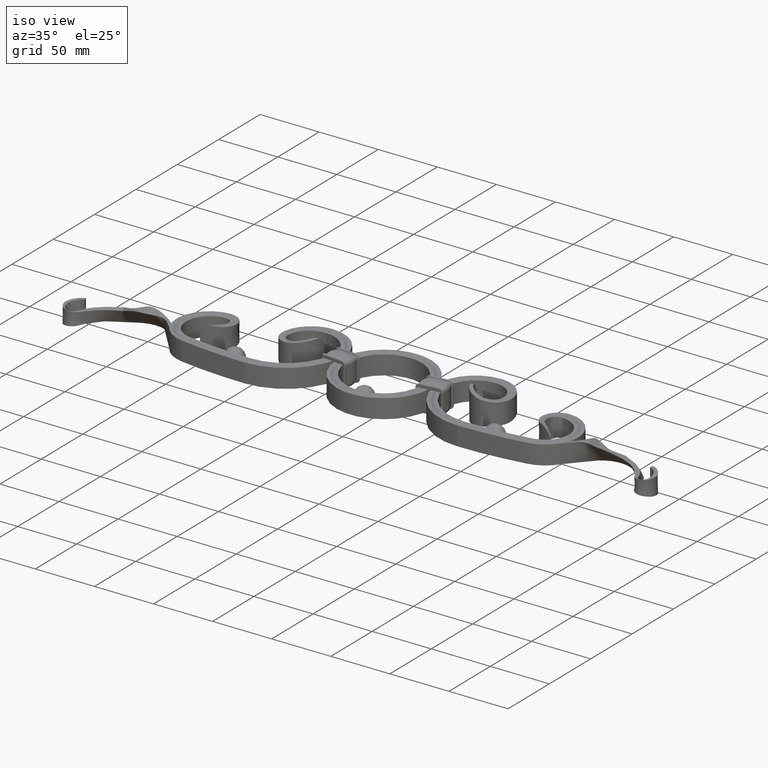
[diagram: clean part render]
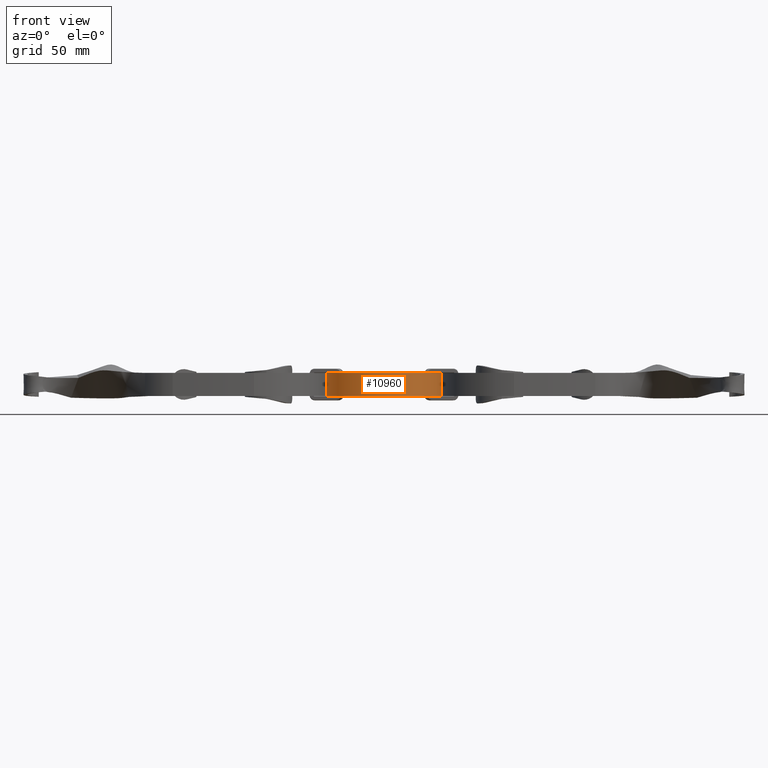
[diagram: tour spotlight — one face highlighted and labeled with its STEP entity id]
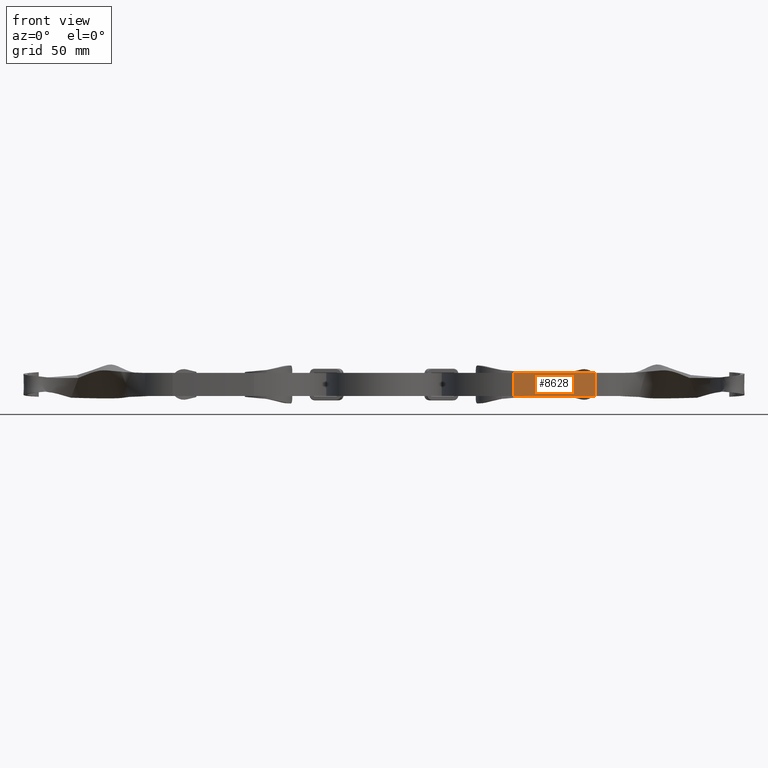
[diagram: tour spotlight — one face highlighted and labeled with its STEP entity id]
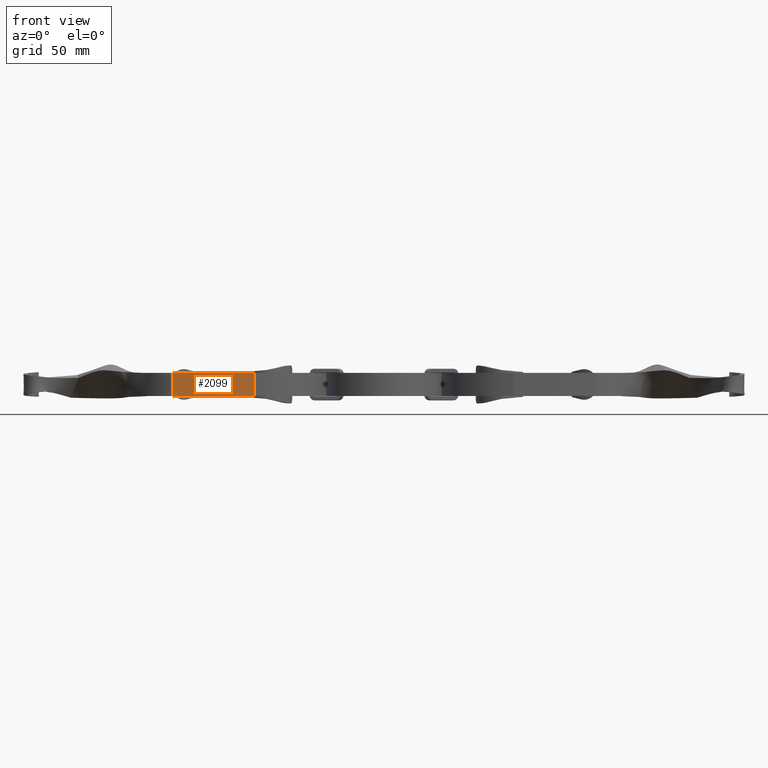
[diagram: tour spotlight — one face highlighted and labeled with its STEP entity id]
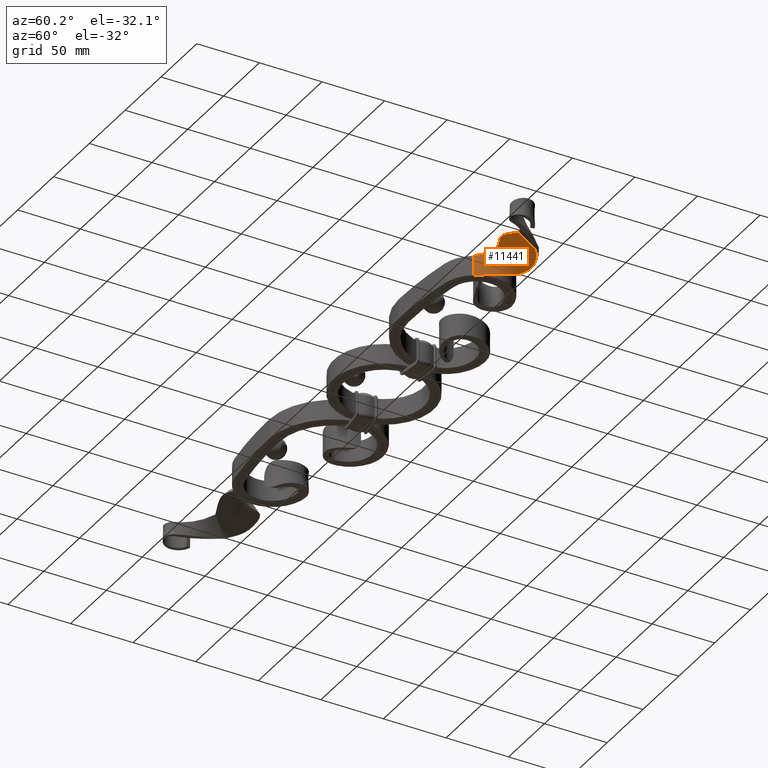
[diagram: tour spotlight — one face highlighted and labeled with its STEP entity id]
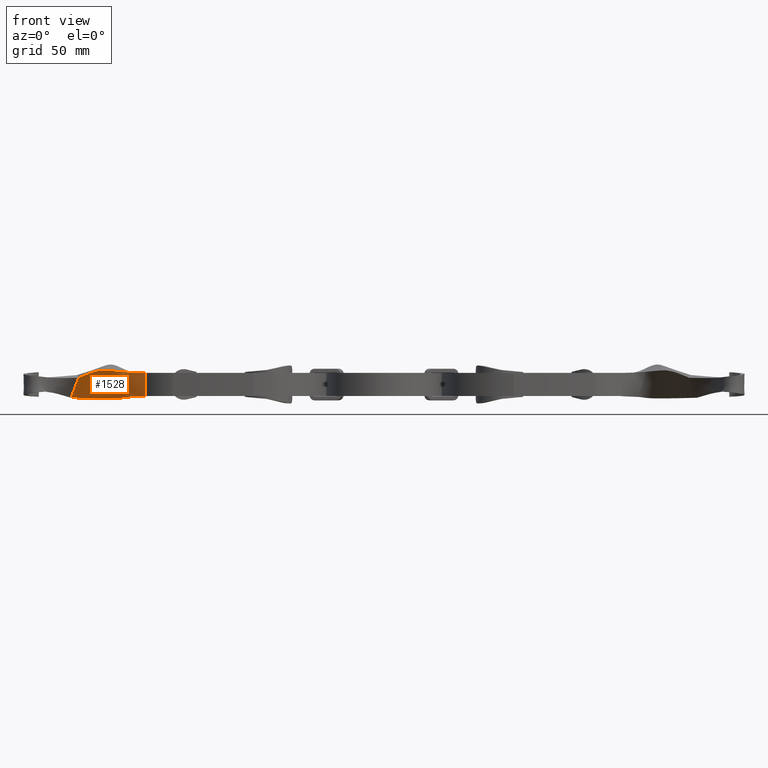
[diagram: tour spotlight — one face highlighted and labeled with its STEP entity id]
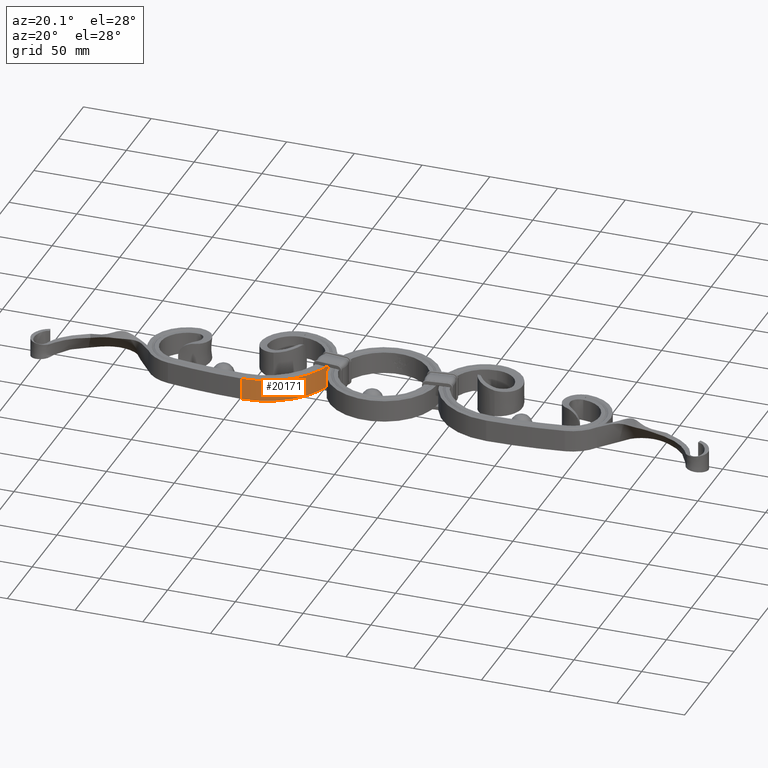
[diagram: tour spotlight — one face highlighted and labeled with its STEP entity id]
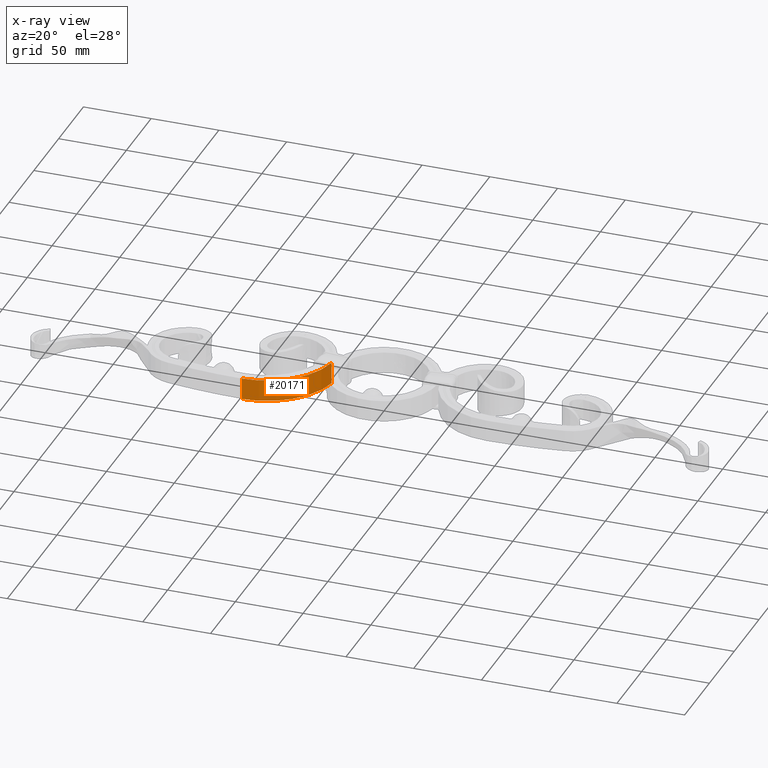
[diagram: x-ray of the same camera — body ghosted, this tour face saturated]
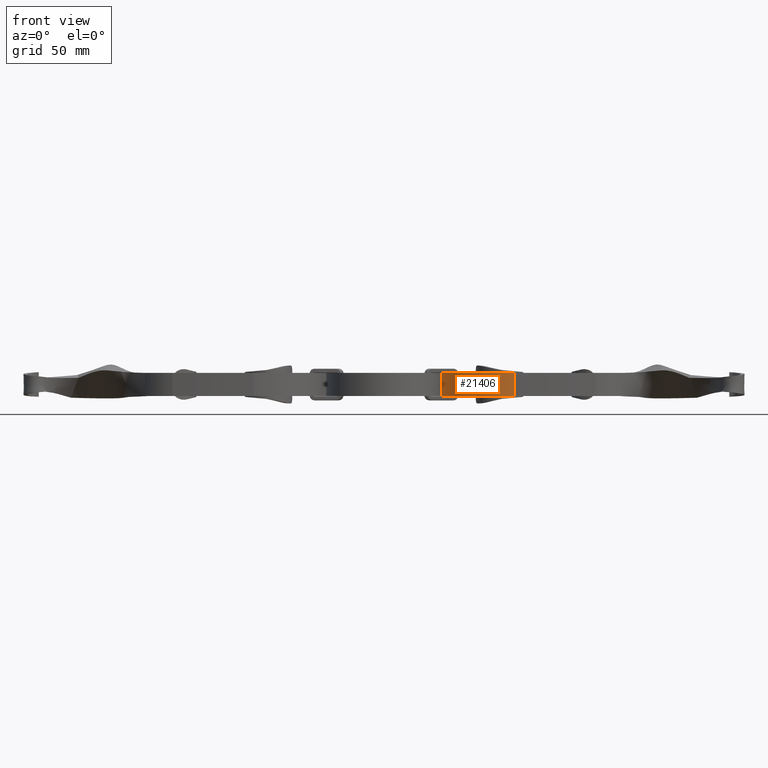
[diagram: tour spotlight — one face highlighted and labeled with its STEP entity id]
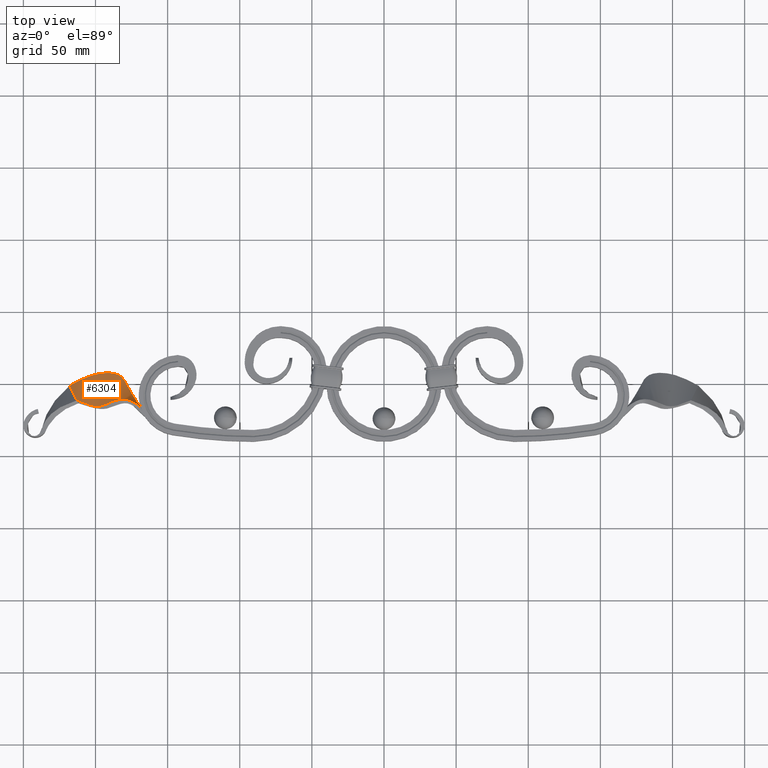
[diagram: tour spotlight — one face highlighted and labeled with its STEP entity id]
A machine part: a face-by-face anatomy tour. The part has 675 B-rep faces; the first image is the clean iso view, then the 8 largest visible faces are spotlighted one at a time (largest first), each with its STEP entity span.

Face 1 — front view, entity #10960. In plain terms, the highlighted cylindrical surface (bore or boss wall) has radius 40 mm, axis along (-0, -0, -1).
Definition (entity closure, byte-faithful):
#2680 = ORIENTED_EDGE ( 'NONE', *, *, #4210, .F. ) ;
#3230 = DIRECTION ( 'NONE',  ( -0.000000000000000000, -0.000000000000000000, -1.000000000000000000 ) ) ;
#4210 = EDGE_CURVE ( 'NONE', #21088, #21088, #10612, .T. ) ;
#4220 = EDGE_LOOP ( 'NONE', ( #2680 ) ) ;
#4745 = CYLINDRICAL_SURFACE ( 'NONE', #5858, 40.00000000000000000 ) ;
#5858 = AXIS2_PLACEMENT_3D ( 'NONE', #12851, #3230, #7498 ) ;
#7498 = DIRECTION ( 'NONE',  ( -1.000000000000000000, 0.000000000000000000, 0.000000000000000000 ) ) ;
#8345 = DIRECTION ( 'NONE',  ( 1.000000000000000000, 0.000000000000000000, 0.000000000000000000 ) ) ;
#9840 = DIRECTION ( 'NONE',  ( 1.000000000000000000, 0.000000000000000000, 0.000000000000000000 ) ) ;
#9925 = DIRECTION ( 'NONE',  ( 0.000000000000000000, 0.000000000000000000, 1.000000000000000000 ) ) ;
#10317 = FACE_OUTER_BOUND ( 'NONE', #16258, .T. ) ;
#10612 = CIRCLE ( 'NONE', #21653, 40.00000000000000000 ) ;
#10960 = ADVANCED_FACE ( 'NONE', ( #12758, #10317 ), #4745, .T. ) ;
#11440 = ORIENTED_EDGE ( 'NONE', *, *, #14466, .T. ) ;
#12371 = DIRECTION ( 'NONE',  ( 0.000000000000000000, 0.000000000000000000, 1.000000000000000000 ) ) ;
#12758 = FACE_OUTER_BOUND ( 'NONE', #4220, .T. ) ;
#12851 = CARTESIAN_POINT ( 'NONE',  ( 0.000000000000000000, 0.000000000000000000, 8.000000000000000000 ) ) ;
#14466 = EDGE_CURVE ( 'NONE', #17687, #17687, #20018, .T. ) ;
#16258 = EDGE_LOOP ( 'NONE', ( #11440 ) ) ;
#16316 = CARTESIAN_POINT ( 'NONE',  ( 0.000000000000000000, 0.000000000000000000, -8.000000000000000000 ) ) ;
#17613 = CARTESIAN_POINT ( 'NONE',  ( 0.000000000000000000, 0.000000000000000000, 8.000000000000000000 ) ) ;
#17687 = VERTEX_POINT ( 'NONE', #22061 ) ;
#20018 = CIRCLE ( 'NONE', #22421, 40.00000000000000000 ) ;
#21088 = VERTEX_POINT ( 'NONE', #21978 ) ;
#21653 = AXIS2_PLACEMENT_3D ( 'NONE', #17613, #9925, #9840 ) ;
#21978 = CARTESIAN_POINT ( 'NONE',  ( 40.00000000000000000, 0.000000000000000000, 8.000000000000000000 ) ) ;
#22061 = CARTESIAN_POINT ( 'NONE',  ( 40.00000000000000000, 0.000000000000000000, -8.000000000000000000 ) ) ;
#22421 = AXIS2_PLACEMENT_3D ( 'NONE', #16316, #12371, #8345 ) ;

Face 2 — front view, entity #8628. In plain terms, the highlighted cylindrical surface (partial cylindrical patch) has radius 354.809 mm, axis along (0, 0, 1).
Definition (entity closure, byte-faithful):
#287 = DIRECTION ( 'NONE',  ( 0.000000000000000000, 0.000000000000000000, 1.000000000000000000 ) ) ;
#872 = CYLINDRICAL_SURFACE ( 'NONE', #22838, 354.8085903100874248 ) ;
#1056 = CIRCLE ( 'NONE', #19675, 354.8085903100874248 ) ;
#2152 = CARTESIAN_POINT ( 'NONE',  ( 146.4999999999994600, -35.49999999998865263, 8.000000000000000000 ) ) ;
#2290 = DIRECTION ( 'NONE',  ( 1.000000000000000000, 0.000000000000000000, 0.000000000000000000 ) ) ;
#4389 = VERTEX_POINT ( 'NONE', #14561 ) ;
#4888 = DIRECTION ( 'NONE',  ( 1.490222418278067970E-14, -1.000000000000000000, 0.000000000000000000 ) ) ;
#5273 = EDGE_CURVE ( 'NONE', #4389, #13670, #1056, .T. ) ;
#5818 = CIRCLE ( 'NONE', #10593, 354.8085903100874248 ) ;
#5988 = VERTEX_POINT ( 'NONE', #9356 ) ;
#6780 = DIRECTION ( 'NONE',  ( 0.000000000000000000, 0.000000000000000000, 1.000000000000000000 ) ) ;
#8519 = LINE ( 'NONE', #2152, #23003 ) ;
#8628 = ADVANCED_FACE ( 'NONE', ( #17411 ), #872, .T. ) ;
#8952 = LINE ( 'NONE', #18427, #10179 ) ;
#9356 = CARTESIAN_POINT ( 'NONE',  ( 90.17036914021441874, -39.99999999999994316, -8.000000000000000000 ) ) ;
#9549 = EDGE_CURVE ( 'NONE', #13670, #13849, #8519, .T. ) ;
#10179 = VECTOR ( 'NONE', #22283, 1000.000000000000000 ) ;
#10593 = AXIS2_PLACEMENT_3D ( 'NONE', #16635, #6780, #4888 ) ;
#13670 = VERTEX_POINT ( 'NONE', #22292 ) ;
#13849 = VERTEX_POINT ( 'NONE', #17391 ) ;
#14092 = ORIENTED_EDGE ( 'NONE', *, *, #9549, .F. ) ;
#14561 = CARTESIAN_POINT ( 'NONE',  ( 90.17036914021441874, -39.99999999999994316, 8.000000000000000000 ) ) ;
#15902 = DIRECTION ( 'NONE',  ( 1.490222418278067970E-14, -1.000000000000000000, 0.000000000000000000 ) ) ;
#16190 = EDGE_CURVE ( 'NONE', #4389, #5988, #8952, .T. ) ;
#16635 = CARTESIAN_POINT ( 'NONE',  ( 90.17036914020901861, 314.8085903100852647, -8.000000000000000000 ) ) ;
#16765 = EDGE_LOOP ( 'NONE', ( #24301, #14092, #18050, #20914 ) ) ;
#17391 = CARTESIAN_POINT ( 'NONE',  ( 146.4999999999994600, -35.49999999998859579, -8.000000000000000000 ) ) ;
#17411 = FACE_OUTER_BOUND ( 'NONE', #16765, .T. ) ;
#17890 = CARTESIAN_POINT ( 'NONE',  ( 90.17036914020901861, 314.8085903100852647, 0.000000000000000000 ) ) ;
#18050 = ORIENTED_EDGE ( 'NONE', *, *, #5273, .F. ) ;
#18427 = CARTESIAN_POINT ( 'NONE',  ( 90.17036914021441874, -39.99999999999993605, 8.000000000000000000 ) ) ;
#19675 = AXIS2_PLACEMENT_3D ( 'NONE', #24048, #287, #15902 ) ;
#19812 = DIRECTION ( 'NONE',  ( 0.000000000000000000, 0.000000000000000000, 1.000000000000000000 ) ) ;
#20914 = ORIENTED_EDGE ( 'NONE', *, *, #16190, .T. ) ;
#21921 = DIRECTION ( 'NONE',  ( 0.000000000000000000, -0.000000000000000000, -1.000000000000000000 ) ) ;
#22283 = DIRECTION ( 'NONE',  ( 0.000000000000000000, -0.000000000000000000, -1.000000000000000000 ) ) ;
#22292 = CARTESIAN_POINT ( 'NONE',  ( 146.4999999999994600, -35.49999999998859579, 8.000000000000000000 ) ) ;
#22838 = AXIS2_PLACEMENT_3D ( 'NONE', #17890, #19812, #2290 ) ;
#23003 = VECTOR ( 'NONE', #21921, 1000.000000000000000 ) ;
#23206 = EDGE_CURVE ( 'NONE', #5988, #13849, #5818, .T. ) ;
#24048 = CARTESIAN_POINT ( 'NONE',  ( 90.17036914020901861, 314.8085903100852647, 8.000000000000000000 ) ) ;
#24301 = ORIENTED_EDGE ( 'NONE', *, *, #23206, .T. ) ;

Face 3 — front view, entity #2099. In plain terms, the highlighted cylindrical surface (partial cylindrical patch) has radius 354.809 mm, axis along (0, 0, 1).
Definition (entity closure, byte-faithful):
#800 = DIRECTION ( 'NONE',  ( -0.000000000000000000, 0.000000000000000000, -1.000000000000000000 ) ) ;
#2099 = ADVANCED_FACE ( 'NONE', ( #2633 ), #17360, .T. ) ;
#2195 = ORIENTED_EDGE ( 'NONE', *, *, #18186, .T. ) ;
#2210 = ORIENTED_EDGE ( 'NONE', *, *, #9276, .F. ) ;
#2633 = FACE_OUTER_BOUND ( 'NONE', #10388, .T. ) ;
#3919 = LINE ( 'NONE', #16657, #8843 ) ;
#5318 = VERTEX_POINT ( 'NONE', #12120 ) ;
#6122 = AXIS2_PLACEMENT_3D ( 'NONE', #21638, #11914, #7968 ) ;
#6183 = EDGE_CURVE ( 'NONE', #24597, #10975, #19410, .T. ) ;
#6977 = DIRECTION ( 'NONE',  ( -0.000000000000000000, 0.000000000000000000, -1.000000000000000000 ) ) ;
#7968 = DIRECTION ( 'NONE',  ( -1.490222418278067970E-14, -1.000000000000000000, 0.000000000000000000 ) ) ;
#8644 = VERTEX_POINT ( 'NONE', #14240 ) ;
#8843 = VECTOR ( 'NONE', #6977, 1000.000000000000000 ) ;
#9276 = EDGE_CURVE ( 'NONE', #8644, #24597, #3919, .T. ) ;
#10388 = EDGE_LOOP ( 'NONE', ( #23097, #2210, #2195, #21264 ) ) ;
#10975 = VERTEX_POINT ( 'NONE', #13019 ) ;
#11914 = DIRECTION ( 'NONE',  ( -0.000000000000000000, -0.000000000000000000, -1.000000000000000000 ) ) ;
#12120 = CARTESIAN_POINT ( 'NONE',  ( -146.4999999999994600, -35.49999999998859579, 8.000000000000000000 ) ) ;
#13019 = CARTESIAN_POINT ( 'NONE',  ( -146.4999999999994600, -35.49999999998859579, -8.000000000000000000 ) ) ;
#13253 = CARTESIAN_POINT ( 'NONE',  ( -90.17036914021441874, -39.99999999999994316, -8.000000000000000000 ) ) ;
#14240 = CARTESIAN_POINT ( 'NONE',  ( -90.17036914021441874, -39.99999999999994316, 8.000000000000000000 ) ) ;
#14868 = LINE ( 'NONE', #18613, #20661 ) ;
#14888 = CARTESIAN_POINT ( 'NONE',  ( -90.17036914020901861, 314.8085903100852647, 8.000000000000000000 ) ) ;
#15698 = AXIS2_PLACEMENT_3D ( 'NONE', #22955, #20999, #20915 ) ;
#15789 = CIRCLE ( 'NONE', #22302, 354.8085903100874248 ) ;
#16657 = CARTESIAN_POINT ( 'NONE',  ( -90.17036914021441874, -39.99999999999993605, 8.000000000000000000 ) ) ;
#17360 = CYLINDRICAL_SURFACE ( 'NONE', #15698, 354.8085903100874248 ) ;
#18186 = EDGE_CURVE ( 'NONE', #8644, #5318, #15789, .T. ) ;
#18613 = CARTESIAN_POINT ( 'NONE',  ( -146.4999999999994600, -35.49999999998865263, 8.000000000000000000 ) ) ;
#18861 = DIRECTION ( 'NONE',  ( -0.000000000000000000, -0.000000000000000000, -1.000000000000000000 ) ) ;
#19253 = EDGE_CURVE ( 'NONE', #5318, #10975, #14868, .T. ) ;
#19410 = CIRCLE ( 'NONE', #6122, 354.8085903100874248 ) ;
#20661 = VECTOR ( 'NONE', #800, 1000.000000000000000 ) ;
#20915 = DIRECTION ( 'NONE',  ( -1.000000000000000000, 0.000000000000000000, 0.000000000000000000 ) ) ;
#20999 = DIRECTION ( 'NONE',  ( 0.000000000000000000, 0.000000000000000000, 1.000000000000000000 ) ) ;
#21264 = ORIENTED_EDGE ( 'NONE', *, *, #19253, .T. ) ;
#21638 = CARTESIAN_POINT ( 'NONE',  ( -90.17036914020901861, 314.8085903100852647, -8.000000000000000000 ) ) ;
#22302 = AXIS2_PLACEMENT_3D ( 'NONE', #14888, #18861, #22709 ) ;
#22709 = DIRECTION ( 'NONE',  ( -1.490222418278067970E-14, -1.000000000000000000, 0.000000000000000000 ) ) ;
#22955 = CARTESIAN_POINT ( 'NONE',  ( -90.17036914020901861, 314.8085903100852647, 0.000000000000000000 ) ) ;
#23097 = ORIENTED_EDGE ( 'NONE', *, *, #6183, .F. ) ;
#24597 = VERTEX_POINT ( 'NONE', #13253 ) ;

Face 4 — auxiliary view, entity #11441. In plain terms, the highlighted face is a freeform B-spline surface patch.
Definition (entity closure, byte-faithful):
#499 = CARTESIAN_POINT ( 'NONE',  ( 217.0072303021503615, -3.125766788131354001, -9.192533317427715289 ) ) ;
#1956 = CARTESIAN_POINT ( 'NONE',  ( 177.0238706418631978, -10.47764799160367666, 8.315958520431363965 ) ) ;
#2774 = CARTESIAN_POINT ( 'NONE',  ( 182.3608591894316362, 2.858743992024001201, -9.735055206470830669 ) ) ;
#2853 = CARTESIAN_POINT ( 'NONE',  ( 169.3234111145159773, -18.70635545455369808, -8.095256397632507372 ) ) ;
#2950 = EDGE_CURVE ( 'NONE', #19907, #17495, #4136, .T. ) ;
#3232 = FACE_OUTER_BOUND ( 'NONE', #21702, .T. ) ;
#3427 = EDGE_CURVE ( 'NONE', #22553, #19907, #12648, .T. ) ;
#3511 = EDGE_CURVE ( 'NONE', #22553, #18022, #9361, .T. ) ;
#4136 = LINE ( 'NONE', #4835, #11508 ) ;
#4171 = CARTESIAN_POINT ( 'NONE',  ( 165.5796159498668771, -22.99999999999983302, -8.000000000000000000 ) ) ;
#4352 = CARTESIAN_POINT ( 'NONE',  ( 175.7025400748494519, -11.39032691649063977, -8.257565716938318090 ) ) ;
#4829 = CARTESIAN_POINT ( 'NONE',  ( 206.4462097755798027, -15.27695537103738488, 6.827261876017139741 ) ) ;
#4835 = CARTESIAN_POINT ( 'NONE',  ( 217.0072303021501909, -3.125766788131304263, -9.192533317427715289 ) ) ;
#6052 = CARTESIAN_POINT ( 'NONE',  ( 165.5796159498670193, -22.99999999999994316, -8.000000000000000000 ) ) ;
#6467 = CARTESIAN_POINT ( 'NONE',  ( 217.0072303021501909, -3.125766788131304263, -9.192533317427715289 ) ) ;
#6725 = CARTESIAN_POINT ( 'NONE',  ( 201.0725001532726424, 7.805957399867978097, -9.651655053258568984 ) ) ;
#7856 = ORIENTED_EDGE ( 'NONE', *, *, #3427, .F. ) ;
#8283 = B_SPLINE_SURFACE_WITH_KNOTS ( 'NONE', 1, 3, ( 
 ( #24405, #12307, #10513, #14295, #20376, #4829, #16248 ),
 ( #8632, #2853, #18203, #2774, #6725, #20455, #6467 ) ),
 .UNSPECIFIED., .F., .F., .F.,
 ( 2, 2 ),
 ( 4, 1, 1, 1, 4 ),
 ( 0.000000000000000000, 1.000000000000000000 ),
 ( 0.000000000000000000, 0.2942491026262117892, 0.5013770491076067204, 0.6770014742750848358, 1.000000000000000000 ),
 .UNSPECIFIED. ) ;
#8598 = CARTESIAN_POINT ( 'NONE',  ( 165.5796159498668771, -22.99999999999983302, -8.000000000000000000 ) ) ;
#8632 = CARTESIAN_POINT ( 'NONE',  ( 165.5796159498670193, -22.99999999999994316, -8.000000000000000000 ) ) ;
#9361 = LINE ( 'NONE', #6052, #10582 ) ;
#9774 = CARTESIAN_POINT ( 'NONE',  ( 165.5796159498668771, -22.99999999999983302, 8.000000000000000000 ) ) ;
#10513 = CARTESIAN_POINT ( 'NONE',  ( 177.0238706418631978, -10.47764799160367666, 8.315958520431369294 ) ) ;
#10582 = VECTOR ( 'NONE', #13880, 1000.000000000000000 ) ;
#11441 = ADVANCED_FACE ( 'NONE', ( #3232 ), #8283, .T. ) ;
#11508 = VECTOR ( 'NONE', #20551, 1000.000000000000227 ) ;
#11534 = CARTESIAN_POINT ( 'NONE',  ( 217.0072303021503615, -3.125766788131354001, -9.192533317427715289 ) ) ;
#11899 = CARTESIAN_POINT ( 'NONE',  ( 206.4462097755798027, -15.27695537103739021, 6.827261876017141518 ) ) ;
#12221 = CARTESIAN_POINT ( 'NONE',  ( 165.5796159498668771, -22.99999999999983302, 8.000000000000000000 ) ) ;
#12307 = CARTESIAN_POINT ( 'NONE',  ( 169.8120832537727267, -18.36881633011866910, 8.116852005054679964 ) ) ;
#12648 = B_SPLINE_CURVE_WITH_KNOTS ( 'NONE', 3,
 ( #9774, #17542, #1956, #19619, #21798, #11899, #13620 ),
 .UNSPECIFIED., .F., .F.,
 ( 4, 1, 1, 1, 4 ),
 ( 0.000000000000000000, 0.2942491026262117892, 0.5013770491076067204, 0.6770014742750848358, 1.000000000000000000 ),
 .UNSPECIFIED. ) ;
#12803 = ORIENTED_EDGE ( 'NONE', *, *, #2950, .F. ) ;
#13620 = CARTESIAN_POINT ( 'NONE',  ( 211.7588915027916414, -13.43711660593429791, 4.596266658713857645 ) ) ;
#13880 = DIRECTION ( 'NONE',  ( -0.000000000000000000, -0.000000000000000000, -1.000000000000000000 ) ) ;
#14295 = CARTESIAN_POINT ( 'NONE',  ( 189.6857314990781731, -17.10617643652605224, 9.589148287829450723 ) ) ;
#15587 = CARTESIAN_POINT ( 'NONE',  ( 211.7588915027916414, -13.43711660593429791, 4.596266658713857645 ) ) ;
#16248 = CARTESIAN_POINT ( 'NONE',  ( 211.7588915027916414, -13.43711660593429436, 4.596266658713855868 ) ) ;
#16470 = B_SPLINE_CURVE_WITH_KNOTS ( 'NONE', 3,
 ( #4171, #19988, #4352, #21987, #18056, #20072, #499 ),
 .UNSPECIFIED., .F., .F.,
 ( 4, 1, 1, 1, 4 ),
 ( 0.000000000000000000, 0.2942491026262117892, 0.5013770491076067204, 0.6770014742750848358, 1.000000000000000000 ),
 .UNSPECIFIED. ) ;
#16588 = EDGE_CURVE ( 'NONE', #18022, #17495, #16470, .T. ) ;
#17384 = ORIENTED_EDGE ( 'NONE', *, *, #16588, .T. ) ;
#17495 = VERTEX_POINT ( 'NONE', #11534 ) ;
#17542 = CARTESIAN_POINT ( 'NONE',  ( 169.8120832537727267, -18.36881633011866910, 8.116852005054678187 ) ) ;
#18022 = VERTEX_POINT ( 'NONE', #8598 ) ;
#18056 = CARTESIAN_POINT ( 'NONE',  ( 201.0725001532726424, 7.805957399867978097, -9.651655053258568984 ) ) ;
#18203 = CARTESIAN_POINT ( 'NONE',  ( 175.7025400748494519, -11.39032691649063977, -8.257565716938318090 ) ) ;
#19619 = CARTESIAN_POINT ( 'NONE',  ( 189.6857314990781731, -17.10617643652604869, 9.589148287829450723 ) ) ;
#19907 = VERTEX_POINT ( 'NONE', #15587 ) ;
#19988 = CARTESIAN_POINT ( 'NONE',  ( 169.3234111145159773, -18.70635545455369808, -8.095256397632507372 ) ) ;
#20072 = CARTESIAN_POINT ( 'NONE',  ( 210.7429169992627180, 1.171748426408036892, -9.373024757856191158 ) ) ;
#20376 = CARTESIAN_POINT ( 'NONE',  ( 198.2448564287521435, -18.11717215581374418, 10.27131913969019017 ) ) ;
#20455 = CARTESIAN_POINT ( 'NONE',  ( 210.7429169992627180, 1.171748426408036892, -9.373024757856191158 ) ) ;
#20551 = DIRECTION ( 'NONE',  ( 0.2915743777421412886, 0.5728527676557217951, -0.7660444431189763481 ) ) ;
#21702 = EDGE_LOOP ( 'NONE', ( #24051, #17384, #12803, #7856 ) ) ;
#21798 = CARTESIAN_POINT ( 'NONE',  ( 198.2448564287521435, -18.11717215581374418, 10.27131913969019017 ) ) ;
#21987 = CARTESIAN_POINT ( 'NONE',  ( 182.3608591894316362, 2.858743992024001201, -9.735055206470830669 ) ) ;
#22553 = VERTEX_POINT ( 'NONE', #12221 ) ;
#24051 = ORIENTED_EDGE ( 'NONE', *, *, #3511, .T. ) ;
#24405 = CARTESIAN_POINT ( 'NONE',  ( 165.5796159498670193, -22.99999999999994316, 8.000000000000000000 ) ) ;

Face 5 — front view, entity #1528. In plain terms, the highlighted face is a freeform B-spline surface patch.
Definition (entity closure, byte-faithful):
#424 = VERTEX_POINT ( 'NONE', #14547 ) ;
#1528 = ADVANCED_FACE ( 'NONE', ( #23300 ), #12861, .F. ) ;
#1587 = CARTESIAN_POINT ( 'NONE',  ( -169.3234111145159773, -18.70635545455369808, -8.095256397632507372 ) ) ;
#1750 = CARTESIAN_POINT ( 'NONE',  ( -198.2448564287521435, -18.11717215581374418, 10.27131913969019017 ) ) ;
#2046 = CARTESIAN_POINT ( 'NONE',  ( -206.4462097755798027, -15.27695537103739021, 6.827261876017141518 ) ) ;
#2053 = VERTEX_POINT ( 'NONE', #4864 ) ;
#3685 = CARTESIAN_POINT ( 'NONE',  ( -165.5796159498668771, -22.99999999999983302, 8.000000000000000000 ) ) ;
#3716 = CARTESIAN_POINT ( 'NONE',  ( -211.7588915027916414, -13.43711660593429436, 4.596266658713855868 ) ) ;
#3802 = CARTESIAN_POINT ( 'NONE',  ( -169.8120832537727267, -18.36881633011866910, 8.116852005054679964 ) ) ;
#3911 = VERTEX_POINT ( 'NONE', #15852 ) ;
#4864 = CARTESIAN_POINT ( 'NONE',  ( -217.0072303021503615, -3.125766788131354001, -9.192533317427715289 ) ) ;
#5021 = ORIENTED_EDGE ( 'NONE', *, *, #17392, .T. ) ;
#5066 = EDGE_CURVE ( 'NONE', #3911, #16796, #25392, .T. ) ;
#5353 = CARTESIAN_POINT ( 'NONE',  ( -182.3608591894316362, 2.858743992024001201, -9.735055206470830669 ) ) ;
#5439 = CARTESIAN_POINT ( 'NONE',  ( -217.0072303021501909, -3.125766788131304263, -9.192533317427715289 ) ) ;
#5615 = CARTESIAN_POINT ( 'NONE',  ( -165.5796159498668771, -22.99999999999983302, -8.000000000000000000 ) ) ;
#6557 = EDGE_CURVE ( 'NONE', #3911, #424, #9227, .T. ) ;
#6737 = VECTOR ( 'NONE', #19247, 1000.000000000000227 ) ;
#7561 = CARTESIAN_POINT ( 'NONE',  ( -217.0072303021501909, -3.125766788131304263, -9.192533317427715289 ) ) ;
#7567 = CARTESIAN_POINT ( 'NONE',  ( -175.7025400748494519, -11.39032691649063977, -8.257565716938318090 ) ) ;
#7699 = CARTESIAN_POINT ( 'NONE',  ( -211.7588915027916414, -13.43711660593429791, 4.596266658713857645 ) ) ;
#7795 = VECTOR ( 'NONE', #13792, 1000.000000000000000 ) ;
#7809 = EDGE_LOOP ( 'NONE', ( #16540, #8196, #5021, #12537 ) ) ;
#7833 = CARTESIAN_POINT ( 'NONE',  ( -189.6857314990781731, -17.10617643652605224, 9.589148287829450723 ) ) ;
#8196 = ORIENTED_EDGE ( 'NONE', *, *, #6557, .T. ) ;
#9227 = B_SPLINE_CURVE_WITH_KNOTS ( 'NONE', 3,
 ( #3685, #21362, #13802, #17472, #25390, #2046, #7699 ),
 .UNSPECIFIED., .F., .F.,
 ( 4, 1, 1, 1, 4 ),
 ( 0.000000000000000000, 0.2942491026262117892, 0.5013770491076067204, 0.6770014742750848358, 1.000000000000000000 ),
 .UNSPECIFIED. ) ;
#9402 = CARTESIAN_POINT ( 'NONE',  ( -217.0072303021503615, -3.125766788131354001, -9.192533317427715289 ) ) ;
#9569 = CARTESIAN_POINT ( 'NONE',  ( -210.7429169992627180, 1.171748426408036892, -9.373024757856191158 ) ) ;
#9650 = CARTESIAN_POINT ( 'NONE',  ( -165.5796159498670193, -22.99999999999994316, 8.000000000000000000 ) ) ;
#10131 = LINE ( 'NONE', #5439, #6737 ) ;
#11532 = CARTESIAN_POINT ( 'NONE',  ( -201.0725001532726424, 7.805957399867978097, -9.651655053258568984 ) ) ;
#11610 = CARTESIAN_POINT ( 'NONE',  ( -210.7429169992627180, 1.171748426408036892, -9.373024757856191158 ) ) ;
#11779 = CARTESIAN_POINT ( 'NONE',  ( -169.3234111145159773, -18.70635545455369808, -8.095256397632507372 ) ) ;
#11815 = CARTESIAN_POINT ( 'NONE',  ( -165.5796159498670193, -22.99999999999994316, -8.000000000000000000 ) ) ;
#12537 = ORIENTED_EDGE ( 'NONE', *, *, #21185, .F. ) ;
#12861 = B_SPLINE_SURFACE_WITH_KNOTS ( 'NONE', 1, 3, ( 
 ( #9650, #3802, #15572, #7833, #1750, #15494, #3716 ),
 ( #17252, #11779, #23446, #13415, #19501, #11610, #7561 ) ),
 .UNSPECIFIED., .F., .F., .F.,
 ( 2, 2 ),
 ( 4, 1, 1, 1, 4 ),
 ( 0.000000000000000000, 1.000000000000000000 ),
 ( 0.000000000000000000, 0.2942491026262117892, 0.5013770491076067204, 0.6770014742750848358, 1.000000000000000000 ),
 .UNSPECIFIED. ) ;
#13104 = CARTESIAN_POINT ( 'NONE',  ( -165.5796159498668771, -22.99999999999983302, -8.000000000000000000 ) ) ;
#13415 = CARTESIAN_POINT ( 'NONE',  ( -182.3608591894316362, 2.858743992024001201, -9.735055206470830669 ) ) ;
#13792 = DIRECTION ( 'NONE',  ( 0.000000000000000000, -0.000000000000000000, -1.000000000000000000 ) ) ;
#13802 = CARTESIAN_POINT ( 'NONE',  ( -177.0238706418631978, -10.47764799160367666, 8.315958520431363965 ) ) ;
#14547 = CARTESIAN_POINT ( 'NONE',  ( -211.7588915027916414, -13.43711660593429791, 4.596266658713857645 ) ) ;
#15494 = CARTESIAN_POINT ( 'NONE',  ( -206.4462097755798027, -15.27695537103738488, 6.827261876017139741 ) ) ;
#15572 = CARTESIAN_POINT ( 'NONE',  ( -177.0238706418631978, -10.47764799160367666, 8.315958520431369294 ) ) ;
#15852 = CARTESIAN_POINT ( 'NONE',  ( -165.5796159498668771, -22.99999999999983302, 8.000000000000000000 ) ) ;
#16540 = ORIENTED_EDGE ( 'NONE', *, *, #5066, .F. ) ;
#16796 = VERTEX_POINT ( 'NONE', #13104 ) ;
#17252 = CARTESIAN_POINT ( 'NONE',  ( -165.5796159498670193, -22.99999999999994316, -8.000000000000000000 ) ) ;
#17392 = EDGE_CURVE ( 'NONE', #424, #2053, #10131, .T. ) ;
#17472 = CARTESIAN_POINT ( 'NONE',  ( -189.6857314990781731, -17.10617643652604869, 9.589148287829450723 ) ) ;
#19247 = DIRECTION ( 'NONE',  ( -0.2915743777421412886, 0.5728527676557217951, -0.7660444431189763481 ) ) ;
#19287 = B_SPLINE_CURVE_WITH_KNOTS ( 'NONE', 3,
 ( #5615, #1587, #7567, #5353, #11532, #9569, #9402 ),
 .UNSPECIFIED., .F., .F.,
 ( 4, 1, 1, 1, 4 ),
 ( 0.000000000000000000, 0.2942491026262117892, 0.5013770491076067204, 0.6770014742750848358, 1.000000000000000000 ),
 .UNSPECIFIED. ) ;
#19501 = CARTESIAN_POINT ( 'NONE',  ( -201.0725001532726424, 7.805957399867978097, -9.651655053258568984 ) ) ;
#21185 = EDGE_CURVE ( 'NONE', #16796, #2053, #19287, .T. ) ;
#21362 = CARTESIAN_POINT ( 'NONE',  ( -169.8120832537727267, -18.36881633011866910, 8.116852005054678187 ) ) ;
#23300 = FACE_OUTER_BOUND ( 'NONE', #7809, .T. ) ;
#23446 = CARTESIAN_POINT ( 'NONE',  ( -175.7025400748494519, -11.39032691649063977, -8.257565716938318090 ) ) ;
#25390 = CARTESIAN_POINT ( 'NONE',  ( -198.2448564287521435, -18.11717215581374418, 10.27131913969019017 ) ) ;
#25392 = LINE ( 'NONE', #11815, #7795 ) ;

Face 6 — auxiliary view, entity #20171. An x-ray twin of the same camera follows (body ghosted, this face saturated) — the face is partly hidden behind the body. In plain terms, the highlighted cylindrical surface (partial cylindrical patch) has radius 50.8301 mm, axis along (0, 0, 1).
Definition (entity closure, byte-faithful):
#3694 = CARTESIAN_POINT ( 'NONE',  ( -39.91766118817221098, 3.190532668118021942, 8.000000000000000000 ) ) ;
#3919 = LINE ( 'NONE', #16657, #8843 ) ;
#5713 = AXIS2_PLACEMENT_3D ( 'NONE', #6496, #8139, #14243 ) ;
#6241 = ORIENTED_EDGE ( 'NONE', *, *, #9276, .T. ) ;
#6496 = CARTESIAN_POINT ( 'NONE',  ( -90.17036914020910388, 10.83008355566797398, 8.000000000000000000 ) ) ;
#6977 = DIRECTION ( 'NONE',  ( -0.000000000000000000, 0.000000000000000000, -1.000000000000000000 ) ) ;
#8139 = DIRECTION ( 'NONE',  ( -0.000000000000000000, -0.000000000000000000, -1.000000000000000000 ) ) ;
#8608 = CARTESIAN_POINT ( 'NONE',  ( -90.17036914020910388, 10.83008355566797398, -8.000000000000000000 ) ) ;
#8644 = VERTEX_POINT ( 'NONE', #14240 ) ;
#8843 = VECTOR ( 'NONE', #6977, 1000.000000000000000 ) ;
#9276 = EDGE_CURVE ( 'NONE', #8644, #24597, #3919, .T. ) ;
#9614 = ORIENTED_EDGE ( 'NONE', *, *, #22012, .T. ) ;
#10569 = DIRECTION ( 'NONE',  ( 0.9886410652266851562, -0.1502958553901121153, 0.000000000000000000 ) ) ;
#10851 = DIRECTION ( 'NONE',  ( 0.000000000000000000, 0.000000000000000000, 1.000000000000000000 ) ) ;
#11059 = ORIENTED_EDGE ( 'NONE', *, *, #16230, .F. ) ;
#11241 = VERTEX_POINT ( 'NONE', #20040 ) ;
#12012 = FACE_OUTER_BOUND ( 'NONE', #21263, .T. ) ;
#12450 = DIRECTION ( 'NONE',  ( -0.000000000000000000, -0.000000000000000000, -1.000000000000000000 ) ) ;
#13099 = VERTEX_POINT ( 'NONE', #22616 ) ;
#13253 = CARTESIAN_POINT ( 'NONE',  ( -90.17036914021441874, -39.99999999999994316, -8.000000000000000000 ) ) ;
#13336 = AXIS2_PLACEMENT_3D ( 'NONE', #8608, #12450, #10569 ) ;
#13781 = EDGE_CURVE ( 'NONE', #11241, #13099, #13877, .T. ) ;
#13877 = LINE ( 'NONE', #3694, #20037 ) ;
#14240 = CARTESIAN_POINT ( 'NONE',  ( -90.17036914021441874, -39.99999999999994316, 8.000000000000000000 ) ) ;
#14243 = DIRECTION ( 'NONE',  ( 0.9886410652266851562, -0.1502958553901121153, 0.000000000000000000 ) ) ;
#16030 = ORIENTED_EDGE ( 'NONE', *, *, #13781, .F. ) ;
#16230 = EDGE_CURVE ( 'NONE', #13099, #24597, #23760, .T. ) ;
#16657 = CARTESIAN_POINT ( 'NONE',  ( -90.17036914021441874, -39.99999999999993605, 8.000000000000000000 ) ) ;
#16737 = CARTESIAN_POINT ( 'NONE',  ( -90.17036914020910388, 10.83008355566797398, 0.000000000000000000 ) ) ;
#19320 = CIRCLE ( 'NONE', #5713, 50.83008355566790470 ) ;
#20037 = VECTOR ( 'NONE', #23339, 1000.000000000000000 ) ;
#20040 = CARTESIAN_POINT ( 'NONE',  ( -39.91766118817220388, 3.190532668118020165, 8.000000000000000000 ) ) ;
#20171 = ADVANCED_FACE ( 'NONE', ( #12012 ), #20937, .T. ) ;
#20937 = CYLINDRICAL_SURFACE ( 'NONE', #24180, 50.83008355566791181 ) ;
#21263 = EDGE_LOOP ( 'NONE', ( #11059, #16030, #9614, #6241 ) ) ;
#22012 = EDGE_CURVE ( 'NONE', #11241, #8644, #19320, .T. ) ;
#22616 = CARTESIAN_POINT ( 'NONE',  ( -39.91766118817220388, 3.190532668118020165, -8.000000000000000000 ) ) ;
#22820 = DIRECTION ( 'NONE',  ( -1.000000000000000000, 0.000000000000000000, 0.000000000000000000 ) ) ;
#23339 = DIRECTION ( 'NONE',  ( 0.000000000000000000, 0.000000000000000000, -1.000000000000000000 ) ) ;
#23760 = CIRCLE ( 'NONE', #13336, 50.83008355566790470 ) ;
#24180 = AXIS2_PLACEMENT_3D ( 'NONE', #16737, #10851, #22820 ) ;
#24597 = VERTEX_POINT ( 'NONE', #13253 ) ;

Face 7 — front view, entity #21406. In plain terms, the highlighted cylindrical surface (partial cylindrical patch) has radius 50.8301 mm, axis along (0, 0, 1).
Definition (entity closure, byte-faithful):
#78 = ORIENTED_EDGE ( 'NONE', *, *, #4859, .T. ) ;
#1534 = DIRECTION ( 'NONE',  ( -0.9886410652266851562, -0.1502958553901121153, 0.000000000000000000 ) ) ;
#2564 = VECTOR ( 'NONE', #15974, 1000.000000000000000 ) ;
#3074 = FACE_OUTER_BOUND ( 'NONE', #6600, .T. ) ;
#3387 = CARTESIAN_POINT ( 'NONE',  ( 39.91766118817220388, 3.190532668118020165, 8.000000000000000000 ) ) ;
#4389 = VERTEX_POINT ( 'NONE', #14561 ) ;
#4859 = EDGE_CURVE ( 'NONE', #17353, #9906, #25082, .T. ) ;
#5528 = CARTESIAN_POINT ( 'NONE',  ( 90.17036914020910388, 10.83008355566797398, 8.000000000000000000 ) ) ;
#5988 = VERTEX_POINT ( 'NONE', #9356 ) ;
#6471 = CIRCLE ( 'NONE', #13079, 50.83008355566790470 ) ;
#6600 = EDGE_LOOP ( 'NONE', ( #8333, #17196, #24206, #78 ) ) ;
#7831 = DIRECTION ( 'NONE',  ( 1.000000000000000000, 0.000000000000000000, 0.000000000000000000 ) ) ;
#8333 = ORIENTED_EDGE ( 'NONE', *, *, #20677, .T. ) ;
#8427 = CARTESIAN_POINT ( 'NONE',  ( 39.91766118817221098, 3.190532668118021942, 8.000000000000000000 ) ) ;
#8952 = LINE ( 'NONE', #18427, #10179 ) ;
#9242 = DIRECTION ( 'NONE',  ( 0.000000000000000000, 0.000000000000000000, 1.000000000000000000 ) ) ;
#9353 = CARTESIAN_POINT ( 'NONE',  ( 90.17036914020910388, 10.83008355566797398, -8.000000000000000000 ) ) ;
#9356 = CARTESIAN_POINT ( 'NONE',  ( 90.17036914021441874, -39.99999999999994316, -8.000000000000000000 ) ) ;
#9906 = VERTEX_POINT ( 'NONE', #12070 ) ;
#10179 = VECTOR ( 'NONE', #22283, 1000.000000000000000 ) ;
#12070 = CARTESIAN_POINT ( 'NONE',  ( 39.91766118817220388, 3.190532668118020165, -8.000000000000000000 ) ) ;
#13079 = AXIS2_PLACEMENT_3D ( 'NONE', #9353, #19107, #1534 ) ;
#13548 = AXIS2_PLACEMENT_3D ( 'NONE', #5528, #9242, #23022 ) ;
#14561 = CARTESIAN_POINT ( 'NONE',  ( 90.17036914021441874, -39.99999999999994316, 8.000000000000000000 ) ) ;
#15974 = DIRECTION ( 'NONE',  ( -0.000000000000000000, 0.000000000000000000, -1.000000000000000000 ) ) ;
#16190 = EDGE_CURVE ( 'NONE', #4389, #5988, #8952, .T. ) ;
#17196 = ORIENTED_EDGE ( 'NONE', *, *, #16190, .F. ) ;
#17353 = VERTEX_POINT ( 'NONE', #3387 ) ;
#17669 = DIRECTION ( 'NONE',  ( 0.000000000000000000, 0.000000000000000000, 1.000000000000000000 ) ) ;
#18427 = CARTESIAN_POINT ( 'NONE',  ( 90.17036914021441874, -39.99999999999993605, 8.000000000000000000 ) ) ;
#19107 = DIRECTION ( 'NONE',  ( 0.000000000000000000, 0.000000000000000000, 1.000000000000000000 ) ) ;
#19409 = CARTESIAN_POINT ( 'NONE',  ( 90.17036914020910388, 10.83008355566797398, 0.000000000000000000 ) ) ;
#20488 = AXIS2_PLACEMENT_3D ( 'NONE', #19409, #17669, #7831 ) ;
#20677 = EDGE_CURVE ( 'NONE', #9906, #5988, #6471, .T. ) ;
#21406 = ADVANCED_FACE ( 'NONE', ( #3074 ), #22491, .T. ) ;
#22086 = CIRCLE ( 'NONE', #13548, 50.83008355566790470 ) ;
#22283 = DIRECTION ( 'NONE',  ( 0.000000000000000000, -0.000000000000000000, -1.000000000000000000 ) ) ;
#22491 = CYLINDRICAL_SURFACE ( 'NONE', #20488, 50.83008355566791181 ) ;
#23022 = DIRECTION ( 'NONE',  ( -0.9886410652266851562, -0.1502958553901121153, 0.000000000000000000 ) ) ;
#24206 = ORIENTED_EDGE ( 'NONE', *, *, #24566, .F. ) ;
#24566 = EDGE_CURVE ( 'NONE', #17353, #4389, #22086, .T. ) ;
#25082 = LINE ( 'NONE', #8427, #2564 ) ;

Face 8 — top view, entity #6304. In plain terms, the highlighted face is a freeform B-spline surface patch.
Definition (entity closure, byte-faithful):
#550 = EDGE_LOOP ( 'NONE', ( #19529, #12233, #7260, #2947, #25312 ) ) ;
#778 = CARTESIAN_POINT ( 'NONE',  ( -167.7345819910206046, -16.81717611087921682, 7.753244256257596945 ) ) ;
#833 = CARTESIAN_POINT ( 'NONE',  ( -212.8013459393394839, -11.38901857429058140, 6.524629487773481173 ) ) ;
#1673 = CARTESIAN_POINT ( 'NONE',  ( -169.0916828953050413, -14.98491455948966511, -8.000000000000000000 ) ) ;
#2301 = EDGE_CURVE ( 'NONE', #23329, #19081, #23042, .T. ) ;
#2947 = ORIENTED_EDGE ( 'NONE', *, *, #3964, .T. ) ;
#3459 = B_SPLINE_CURVE_WITH_KNOTS ( 'NONE', 3,
 ( #833, #20478, #20734, #4673, #16683, #16600, #18654 ),
 .UNSPECIFIED., .F., .F.,
 ( 4, 1, 1, 1, 4 ),
 ( 0.000000000000000000, 0.3229985257249151642, 0.4986229508923932796, 0.7057508973737882663, 0.8803601069187638739 ),
 .UNSPECIFIED. ) ;
#3964 = EDGE_CURVE ( 'NONE', #18628, #13753, #3459, .T. ) ;
#4385 = CARTESIAN_POINT ( 'NONE',  ( -212.8013459393394839, -11.38901857429058140, 6.524629487773481173 ) ) ;
#4624 = CARTESIAN_POINT ( 'NONE',  ( -174.3880265887873406, -9.954396228218755027, -9.240732127078587155 ) ) ;
#4673 = CARTESIAN_POINT ( 'NONE',  ( -188.2420989933974056, -11.73649138957723892, 15.48438976817710611 ) ) ;
#4982 = FACE_OUTER_BOUND ( 'NONE', #550, .T. ) ;
#6077 = B_SPLINE_SURFACE_WITH_KNOTS ( 'NONE', 1, 3, ( 
 ( #24374, #16305, #4624, #20255, #14446, #6607, #16219 ),
 ( #12531, #778, #22277, #24114, #8688, #14527, #4385 ) ),
 .UNSPECIFIED., .F., .F., .F.,
 ( 2, 2 ),
 ( 4, 1, 1, 1, 4 ),
 ( 0.000000000000000000, 1.000000000000000000 ),
 ( 0.000000000000000000, 0.2942491026262117892, 0.5013770491076067204, 0.6770014742750848358, 1.000000000000000000 ),
 .UNSPECIFIED. ) ;
#6304 = ADVANCED_FACE ( 'NONE', ( #4982 ), #6077, .F. ) ;
#6607 = CARTESIAN_POINT ( 'NONE',  ( -211.5942614359522338, 2.528720117563164393, -7.949191417245524249 ) ) ;
#7260 = ORIENTED_EDGE ( 'NONE', *, *, #12112, .T. ) ;
#7679 = CARTESIAN_POINT ( 'NONE',  ( -218.0496847386980335, -1.077668756487588198, -7.264170488368089984 ) ) ;
#8567 = CARTESIAN_POINT ( 'NONE',  ( -169.0916828953050413, -14.98491455948966511, -8.000000000000000000 ) ) ;
#8688 = CARTESIAN_POINT ( 'NONE',  ( -198.8011783669315093, -17.82711386483734373, 10.91629449084705783 ) ) ;
#8736 = VECTOR ( 'NONE', #23910, 1000.000000000000114 ) ;
#9474 = CARTESIAN_POINT ( 'NONE',  ( -169.0916828953050413, -14.98491455948966511, -8.000000000000000000 ) ) ;
#9566 = CARTESIAN_POINT ( 'NONE',  ( -168.7934699943005512, -16.04047117970407044, 7.848512071050191885 ) ) ;
#9640 = CARTESIAN_POINT ( 'NONE',  ( -165.1200546840135530, -19.29789434233396150, -8.000000000000000000 ) ) ;
#11614 = CARTESIAN_POINT ( 'NONE',  ( -168.9664298085222640, -15.44980996951345809, -2.725671219001774226 ) ) ;
#11690 = CARTESIAN_POINT ( 'NONE',  ( -168.8288125923661767, -15.92415110017842927, 5.203169030663141292 ) ) ;
#12112 = EDGE_CURVE ( 'NONE', #19081, #18628, #19152, .T. ) ;
#12233 = ORIENTED_EDGE ( 'NONE', *, *, #2301, .T. ) ;
#12531 = CARTESIAN_POINT ( 'NONE',  ( -163.0543309901838427, -21.38045195427919154, 8.000000000000000000 ) ) ;
#13578 = EDGE_CURVE ( 'NONE', #17153, #13753, #14184, .T. ) ;
#13753 = VERTEX_POINT ( 'NONE', #22990 ) ;
#14184 = B_SPLINE_CURVE_WITH_KNOTS ( 'NONE', 3,
 ( #1673, #17181, #11614, #19162, #11690, #9566 ),
 .UNSPECIFIED., .F., .F.,
 ( 4, 2, 4 ),
 ( 1.288786302025344226E-15, 0.007943974186860693065, 0.01588794837372009550 ),
 .UNSPECIFIED. ) ;
#14446 = CARTESIAN_POINT ( 'NONE',  ( -201.6288220914520650, 8.096015690844396318, -9.006679702101706653 ) ) ;
#14527 = CARTESIAN_POINT ( 'NONE',  ( -207.2975542122692900, -13.91998367988226626, 8.251095216627810203 ) ) ;
#14582 = CARTESIAN_POINT ( 'NONE',  ( -212.8013459393394839, -11.38901857429058140, 6.524629487773481173 ) ) ;
#15264 = CARTESIAN_POINT ( 'NONE',  ( -163.0543309901838427, -21.38045195427919154, -8.000000000000000000 ) ) ;
#15568 = CARTESIAN_POINT ( 'NONE',  ( -167.1831973402666165, -17.21294875673260094, -7.999999999999989342 ) ) ;
#15651 = CARTESIAN_POINT ( 'NONE',  ( -163.0543309901838427, -21.38045195427919154, -8.000000000000000000 ) ) ;
#15989 = EDGE_CURVE ( 'NONE', #23329, #17153, #16978, .T. ) ;
#16219 = CARTESIAN_POINT ( 'NONE',  ( -218.0496847386980335, -1.077668756487591750, -7.264170488368086431 ) ) ;
#16305 = CARTESIAN_POINT ( 'NONE',  ( -167.2459098517638552, -17.15471523531424936, -8.458864146429574404 ) ) ;
#16600 = CARTESIAN_POINT ( 'NONE',  ( -171.6149143396571333, -13.66275333171913964, 7.920274763500771087 ) ) ;
#16683 = CARTESIAN_POINT ( 'NONE',  ( -177.9241468578032368, -9.517938546279165024, 8.773344766804870076 ) ) ;
#16978 = B_SPLINE_CURVE_WITH_KNOTS ( 'NONE', 3,
 ( #15651, #9640, #15568, #9474 ),
 .UNSPECIFIED., .F., .F.,
 ( 4, 4 ),
 ( 0.000000000000000000, 0.008794585335838683848 ),
 .UNSPECIFIED. ) ;
#17153 = VERTEX_POINT ( 'NONE', #8567 ) ;
#17181 = CARTESIAN_POINT ( 'NONE',  ( -169.0228695660795211, -15.24813301921356690, -5.365777674370403538 ) ) ;
#18628 = VERTEX_POINT ( 'NONE', #14582 ) ;
#18654 = CARTESIAN_POINT ( 'NONE',  ( -168.7934699943005512, -16.04047117970407044, 7.848512071050191885 ) ) ;
#19081 = VERTEX_POINT ( 'NONE', #20033 ) ;
#19093 = CARTESIAN_POINT ( 'NONE',  ( -174.3880265887873406, -9.954396228218747922, -9.240732127078588931 ) ) ;
#19152 = LINE ( 'NONE', #23579, #8736 ) ;
#19162 = CARTESIAN_POINT ( 'NONE',  ( -168.8693794507052246, -15.78827443360675176, 2.558707457047509681 ) ) ;
#19473 = CARTESIAN_POINT ( 'NONE',  ( -163.0543309901838427, -21.38045195427919154, -8.000000000000000000 ) ) ;
#19529 = ORIENTED_EDGE ( 'NONE', *, *, #15989, .F. ) ;
#20033 = CARTESIAN_POINT ( 'NONE',  ( -218.0496847386980335, -1.077668756487588198, -7.264170488368089984 ) ) ;
#20255 = CARTESIAN_POINT ( 'NONE',  ( -180.9172266837508687, 8.228429038972816301, -3.839813726123197046 ) ) ;
#20478 = CARTESIAN_POINT ( 'NONE',  ( -207.2975542122692900, -13.91998367988226626, 8.251095216627806650 ) ) ;
#20734 = CARTESIAN_POINT ( 'NONE',  ( -198.8011783669315093, -17.82711386483734373, 10.91629449084705783 ) ) ;
#21255 = CARTESIAN_POINT ( 'NONE',  ( -180.9172266837508687, 8.228429038972803866, -3.839813726123189497 ) ) ;
#22277 = CARTESIAN_POINT ( 'NONE',  ( -175.7093571558010296, -9.041717303331779476, 7.332792110291057597 ) ) ;
#22990 = CARTESIAN_POINT ( 'NONE',  ( -168.7934699943005512, -16.04047117970407044, 7.848512071050191885 ) ) ;
#23042 = B_SPLINE_CURVE_WITH_KNOTS ( 'NONE', 3,
 ( #15264, #23394, #19093, #21255, #23123, #25184, #7679 ),
 .UNSPECIFIED., .F., .F.,
 ( 4, 1, 1, 1, 4 ),
 ( 0.000000000000000000, 0.2942491026262117892, 0.5013770491076067204, 0.6770014742750848358, 1.000000000000000000 ),
 .UNSPECIFIED. ) ;
#23123 = CARTESIAN_POINT ( 'NONE',  ( -201.6288220914520650, 8.096015690844401647, -9.006679702101710205 ) ) ;
#23329 = VERTEX_POINT ( 'NONE', #19473 ) ;
#23394 = CARTESIAN_POINT ( 'NONE',  ( -167.2459098517638552, -17.15471523531424580, -8.458864146429574404 ) ) ;
#23579 = CARTESIAN_POINT ( 'NONE',  ( -212.8013459393394839, -11.38901857429058140, 6.524629487773481173 ) ) ;
#23910 = DIRECTION ( 'NONE',  ( 0.2915743777421412886, -0.5728527676557217951, 0.7660444431189763481 ) ) ;
#24114 = CARTESIAN_POINT ( 'NONE',  ( -188.2420989933974056, -11.73649138957724247, 15.48438976817710255 ) ) ;
#24374 = CARTESIAN_POINT ( 'NONE',  ( -163.0543309901838427, -21.38045195427919154, -8.000000000000000000 ) ) ;
#25184 = CARTESIAN_POINT ( 'NONE',  ( -211.5942614359522338, 2.528720117563169278, -7.949191417245526026 ) ) ;
#25312 = ORIENTED_EDGE ( 'NONE', *, *, #13578, .F. ) ;